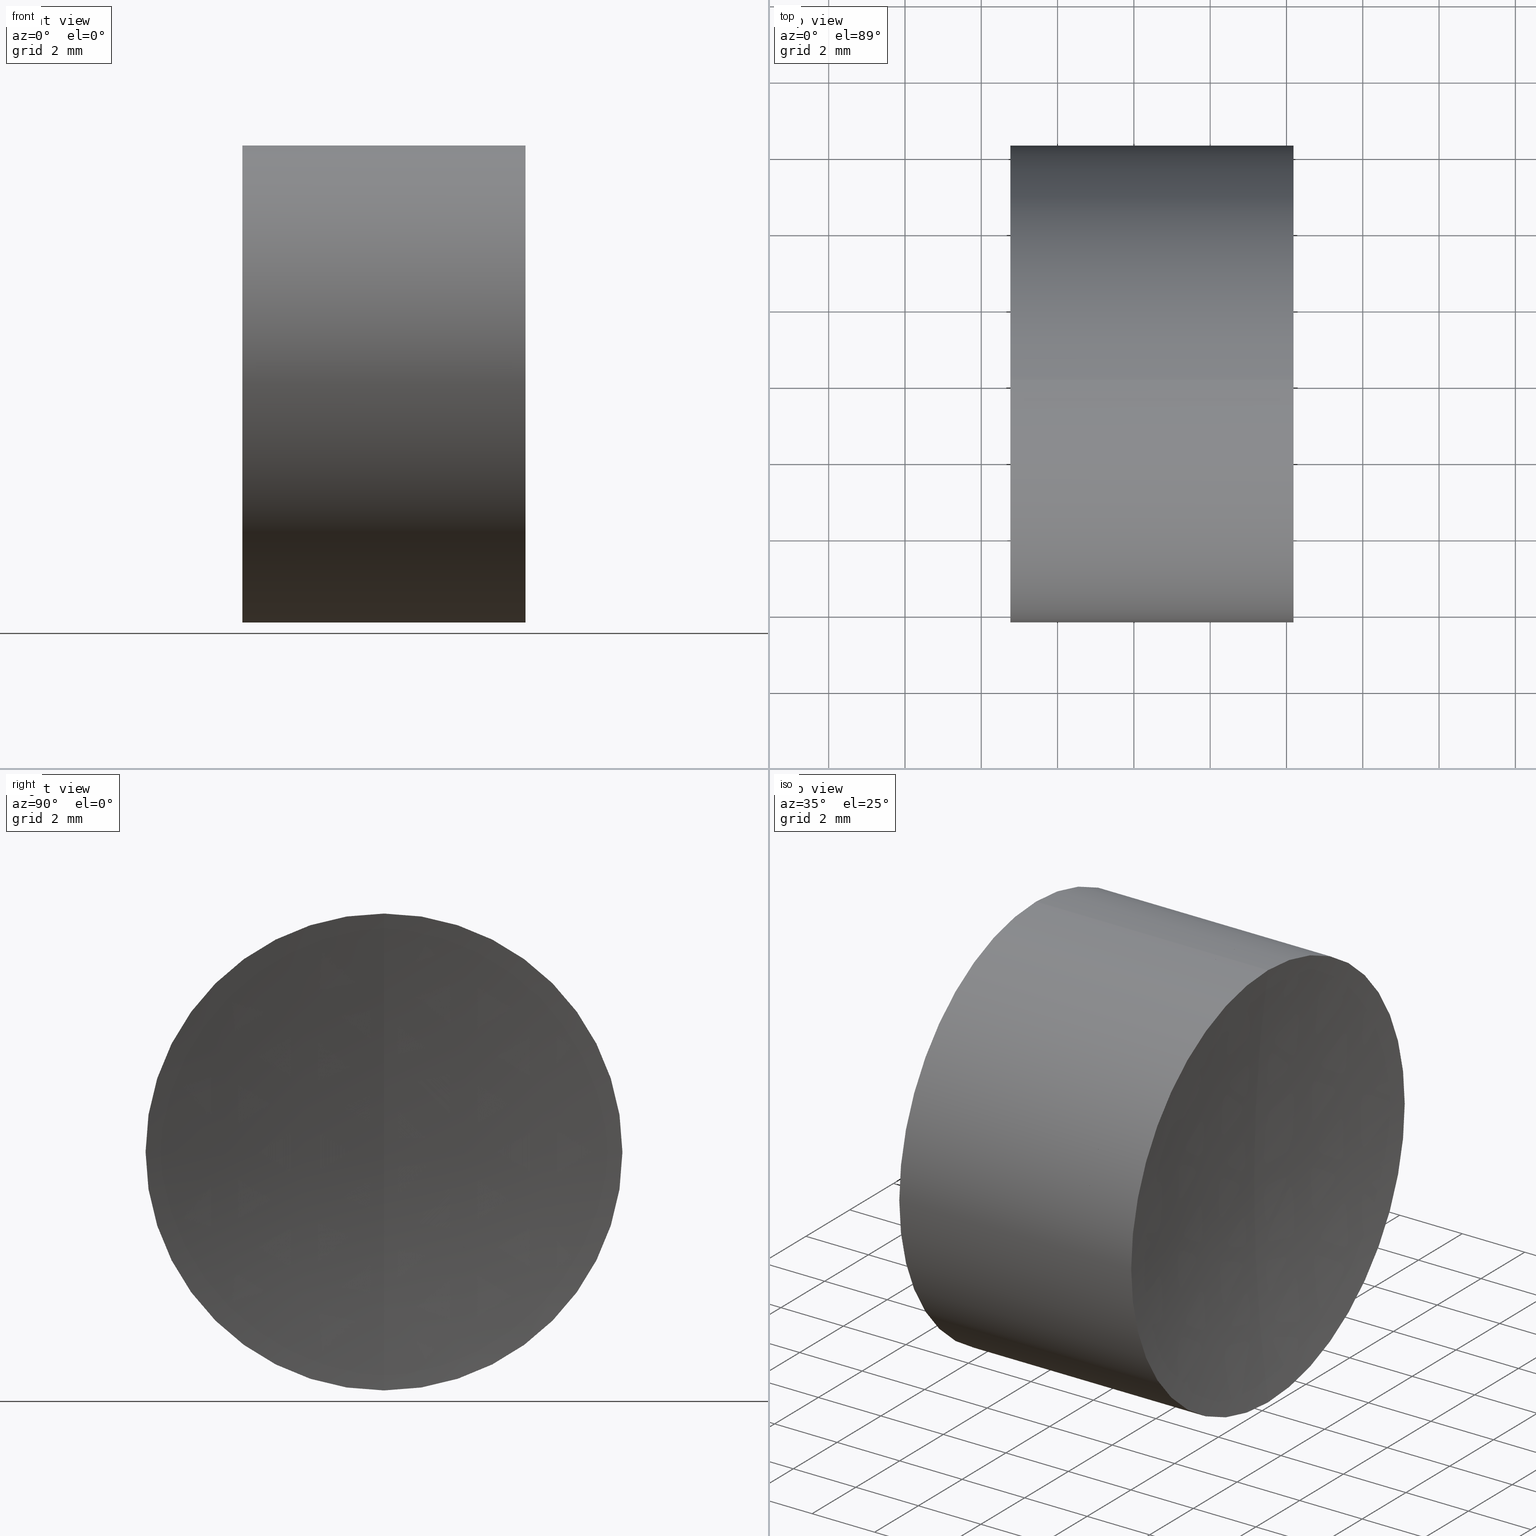
[diagram: canonical four-view strip — front | top / right | iso, engineering-drawing reading convention]
A machine part, canonical four-view strip (front | top / right | iso — engineering-drawing reading convention). The complete STEP part file that produces these views, byte-faithful:
ISO-10303-21;
HEADER;
FILE_DESCRIPTION (( 'STEP AP214' ),
    '1' );
FILE_NAME ('145187.STEP',
    '2019-06-13T03:06:39',
    ( 'user' ),
    ( '΢���й�' ),
    'SwSTEP 2.0',
    'SolidWorks 2016',
    '' );
FILE_SCHEMA (( 'AUTOMOTIVE_DESIGN' ));
ENDSEC;

DATA;
#1 = DIRECTION ( 'NONE',  ( 0.0000000000000000000, -1.000000000000000000, 0.0000000000000000000 ) ) ;
#2 = SPHERICAL_SURFACE ( 'NONE', #309, 13.08999999999999500 ) ;
#3 = VERTEX_POINT ( 'NONE', #164 ) ;
#4 = DIRECTION ( 'NONE',  ( 0.0000000000000000000, 0.0000000000000000000, 1.000000000000000000 ) ) ;
#5 = SURFACE_STYLE_USAGE ( .BOTH. , #320 ) ;
#6 = CARTESIAN_POINT ( 'NONE',  ( 230.6595650911643500, 0.0000000000000000000, 6.249999999999999100 ) ) ;
#7 = ORIENTED_EDGE ( 'NONE', *, *, #278, .F. ) ;
#8 = EDGE_CURVE ( 'NONE', #122, #172, #330, .T. ) ;
#9 = AXIS2_PLACEMENT_3D ( 'NONE', #305, #113, #325 ) ;
#10 = DIRECTION ( 'NONE',  ( -0.0000000000000000000, -1.000000000000000000, -0.0000000000000000000 ) ) ;
#11 = FACE_OUTER_BOUND ( 'NONE', #42, .T. ) ;
#12 = ORIENTED_EDGE ( 'NONE', *, *, #8, .F. ) ;
#13 = CARTESIAN_POINT ( 'NONE',  ( 242.1611128131016200, 0.0000000000000000000, -1.765486017027682300E-025 ) ) ;
#14 = ADVANCED_FACE ( 'NONE', ( #124 ), #260, .F. ) ;
#15 = SPHERICAL_SURFACE ( 'NONE', #239, 13.09000000000000900 ) ;
#16 = DIRECTION ( 'NONE',  ( -4.440892098500621400E-015, 0.0000000000000000000, 1.000000000000000000 ) ) ;
#17 = EDGE_CURVE ( 'NONE', #275, #229, #188, .T. ) ;
#18 = AXIS2_PLACEMENT_3D ( 'NONE', #167, #191, #217 ) ;
#19 = ORIENTED_EDGE ( 'NONE', *, *, #140, .F. ) ;
#20 = FILL_AREA_STYLE ('',( #272 ) ) ;
#21 = UNCERTAINTY_MEASURE_WITH_UNIT (LENGTH_MEASURE( 1.000000000000000100E-005 ), #293, 'distance_accuracy_value', 'NONE');
#22 = LINE ( 'NONE', #185, #302 ) ;
#23 = EDGE_LOOP ( 'NONE', ( #347, #145, #313, #224 ) ) ;
#24 = DIRECTION ( 'NONE',  ( 0.0000000000000000000, 0.0000000000000000000, 1.000000000000000000 ) ) ;
#25 = SURFACE_SIDE_STYLE ('',( #55 ) ) ;
#26 = STYLED_ITEM ( 'NONE', ( #251 ), #91 ) ;
#27 = DIRECTION ( 'NONE',  ( -3.771137991253931800E-015, 0.0000000000000000000, 1.000000000000000000 ) ) ;
#28 = COLOUR_RGB ( '',1.000000000000000000, 1.000000000000000000, 1.000000000000000000 ) ;
#29 = AXIS2_PLACEMENT_3D ( 'NONE', #241, #111, #218 ) ;
#30 = DIRECTION ( 'NONE',  ( -0.0000000000000000000, 1.000000000000000000, 0.0000000000000000000 ) ) ;
#31 = CIRCLE ( 'NONE', #250, 6.250000000000006200 ) ;
#32 = DIRECTION ( 'NONE',  ( -1.000000000000000000, -0.0000000000000000000, -4.069742797125215000E-015 ) ) ;
#33 = VERTEX_POINT ( 'NONE', #133 ) ;
#34 = EDGE_CURVE ( 'NONE', #3, #257, #115, .T. ) ;
#35 = CIRCLE ( 'NONE', #213, 13.08999999999999500 ) ;
#36 = ORIENTED_EDGE ( 'NONE', *, *, #8, .T. ) ;
#37 = SURFACE_STYLE_USAGE ( .BOTH. , #25 ) ;
#38 = CIRCLE ( 'NONE', #119, 6.250000000000041700 ) ;
#39 = APPLICATION_CONTEXT ( 'automotive_design' ) ;
#40 = CARTESIAN_POINT ( 'NONE',  ( 210.4711128131016300, 0.0000000000000000000, 0.0000000000000000000 ) ) ;
#41 = FACE_OUTER_BOUND ( 'NONE', #112, .T. ) ;
#42 = EDGE_LOOP ( 'NONE', ( #248, #90, #139, #192 ) ) ;
#43 = AXIS2_PLACEMENT_3D ( 'NONE', #236, #137, #27 ) ;
#44 = AXIS2_PLACEMENT_3D ( 'NONE', #49, #202, #297 ) ;
#45 = CARTESIAN_POINT ( 'NONE',  ( 230.6595650911644100, 7.654042494670974400E-016, -6.250000000000061300 ) ) ;
#46 = CARTESIAN_POINT ( 'NONE',  ( 230.6595650911643800, 0.0000000000000000000, -1.764147822935559100E-014 ) ) ;
#47 = VECTOR ( 'NONE', #299, 1000.000000000000000 ) ;
#48 = ADVANCED_FACE ( 'NONE', ( #50 ), #106, .T. ) ;
#49 = CARTESIAN_POINT ( 'NONE',  ( 224.7643804590949800, 0.0000000000000000000, -4.143845505352728400E-014 ) ) ;
#50 = FACE_OUTER_BOUND ( 'NONE', #168, .T. ) ;
#51 = CARTESIAN_POINT ( 'NONE',  ( 232.1856338611331400, 0.0000000000000000000, 6.250000000000000000 ) ) ;
#52 = FACE_OUTER_BOUND ( 'NONE', #56, .T. ) ;
#53 = AXIS2_PLACEMENT_3D ( 'NONE', #67, #118, #160 ) ;
#54 = ORIENTED_EDGE ( 'NONE', *, *, #17, .T. ) ;
#55 = SURFACE_STYLE_FILL_AREA ( #114 ) ;
#56 = EDGE_LOOP ( 'NONE', ( #19, #81, #85 ) ) ;
#57 = EDGE_CURVE ( 'NONE', #257, #253, #177, .T. ) ;
#58 = DIRECTION ( 'NONE',  ( -1.000000000000000000, -0.0000000000000000000, -4.069742797125215000E-015 ) ) ;
#59 = PRESENTATION_LAYER_ASSIGNMENT (  '', '', ( #65 ) ) ;
#60 = CARTESIAN_POINT ( 'NONE',  ( 232.1856338611331700, 0.0000000000000000000, -1.143077084485743200E-014 ) ) ;
#61 = CLOSED_SHELL ( 'NONE', ( #186, #48, #136, #291, #212, #242 ) ) ;
#62 = DIRECTION ( 'NONE',  ( -0.0000000000000000000, 1.000000000000000000, 0.0000000000000000000 ) ) ;
#63 = CARTESIAN_POINT ( 'NONE',  ( -0.8160621761658051200, 7.654042494671008900E-016, -6.250000000000041700 ) ) ;
#64 = DIRECTION ( 'NONE',  ( 0.0000000000000000000, 0.0000000000000000000, 1.000000000000000000 ) ) ;
#65 = STYLED_ITEM ( 'NONE', ( #285 ), #103 ) ;
#66 = EDGE_LOOP ( 'NONE', ( #215, #36, #116, #342 ) ) ;
#67 = CARTESIAN_POINT ( 'NONE',  ( 275.9011128131015800, 0.0000000000000000000, 0.0000000000000000000 ) ) ;
#68 = DIRECTION ( 'NONE',  ( 0.0000000000000000000, 0.0000000000000000000, 1.000000000000000000 ) ) ;
#69 = DIRECTION ( 'NONE',  ( -1.000000000000000000, -0.0000000000000000000, -4.069742797125215000E-015 ) ) ;
#70 = VERTEX_POINT ( 'NONE', #258 ) ;
#71 = FACE_OUTER_BOUND ( 'NONE', #130, .T. ) ;
#72 = CARTESIAN_POINT ( 'NONE',  ( 242.1611128131016200, 0.0000000000000000000, -1.765486017027682300E-025 ) ) ;
#73 = ORIENTED_EDGE ( 'NONE', *, *, #109, .T. ) ;
#74 = ADVANCED_FACE ( 'NONE', ( #41 ), #318, .T. ) ;
#75 = CARTESIAN_POINT ( 'NONE',  ( 231.7411128131016100, 0.0000000000000000000, -1.770158217885320100E-013 ) ) ;
#76 = DIRECTION ( 'NONE',  ( 0.0000000000000000000, 0.0000000000000000000, -1.000000000000000000 ) ) ;
#77 = EDGE_CURVE ( 'NONE', #275, #233, #31, .T. ) ;
#78 = DIRECTION ( 'NONE',  ( -1.000000000000000000, -0.0000000000000000000, 1.836970198721029700E-016 ) ) ;
#79 = AXIS2_PLACEMENT_3D ( 'NONE', #235, #126, #132 ) ;
#80 = COLOUR_RGB ( '',1.000000000000000000, 1.000000000000000000, 1.000000000000000000 ) ;
#81 = ORIENTED_EDGE ( 'NONE', *, *, #128, .T. ) ;
#82 = CARTESIAN_POINT ( 'NONE',  ( 210.4711128131016300, 0.0000000000000000000, 0.0000000000000000000 ) ) ;
#83 =( NAMED_UNIT ( * ) PLANE_ANGLE_UNIT ( ) SI_UNIT ( $, .RADIAN. ) );
#84 = VECTOR ( 'NONE', #78, 1000.000000000000000 ) ;
#85 = ORIENTED_EDGE ( 'NONE', *, *, #317, .T. ) ;
#86 = MECHANICAL_DESIGN_GEOMETRIC_PRESENTATION_REPRESENTATION (  '', ( #26 ), #245 ) ;
#87 = STYLED_ITEM ( 'NONE', ( #208 ), #281 ) ;
#88 = SHAPE_DEFINITION_REPRESENTATION ( #135, #281 ) ;
#89 = DIRECTION ( 'NONE',  ( -2.249639673992786400E-032, -1.000000000000000000, -1.224646799147353200E-016 ) ) ;
#90 = ORIENTED_EDGE ( 'NONE', *, *, #34, .T. ) ;
#91 = MANIFOLD_SOLID_BREP ( '��ת3', #345 ) ;
#92 = AXIS2_PLACEMENT_3D ( 'NONE', #162, #138, #295 ) ;
#93 = MECHANICAL_DESIGN_GEOMETRIC_PRESENTATION_REPRESENTATION (  '', ( #65 ), #141 ) ;
#94 = FACE_OUTER_BOUND ( 'NONE', #292, .T. ) ;
#95 = ORIENTED_EDGE ( 'NONE', *, *, #216, .F. ) ;
#96 =( NAMED_UNIT ( * ) SI_UNIT ( $, .STERADIAN. ) SOLID_ANGLE_UNIT ( ) );
#97 = DIRECTION ( 'NONE',  ( 0.0000000000000000000, -1.224646799147353200E-016, 1.000000000000000000 ) ) ;
#98 = ORIENTED_EDGE ( 'NONE', *, *, #117, .T. ) ;
#99 = DIRECTION ( 'NONE',  ( -1.000000000000000000, -0.0000000000000000000, 1.836970198721029700E-016 ) ) ;
#100 = CARTESIAN_POINT ( 'NONE',  ( 230.6595650911643500, 0.0000000000000000000, 6.249999999999996400 ) ) ;
#101 = FACE_OUTER_BOUND ( 'NONE', #282, .T. ) ;
#102 = DIRECTION ( 'NONE',  ( 0.0000000000000000000, 1.000000000000000000, -0.0000000000000000000 ) ) ;
#103 = MANIFOLD_SOLID_BREP ( '��ת1', #61 ) ;
#104 = AXIS2_PLACEMENT_3D ( 'NONE', #201, #62, #68 ) ;
#105 = ADVANCED_FACE ( 'NONE', ( #129 ), #121, .T. ) ;
#106 = CYLINDRICAL_SURFACE ( 'NONE', #92, 6.250000000000041700 ) ;
#107 = ORIENTED_EDGE ( 'NONE', *, *, #148, .T. ) ;
#108 = SURFACE_STYLE_USAGE ( .BOTH. , #343 ) ;
#109 = EDGE_CURVE ( 'NONE', #70, #33, #190, .T. ) ;
#110 = CIRCLE ( 'NONE', #328, 6.250000000000006200 ) ;
#111 = DIRECTION ( 'NONE',  ( 0.0000000000000000000, 0.0000000000000000000, 1.000000000000000000 ) ) ;
#112 = EDGE_LOOP ( 'NONE', ( #210, #54, #161 ) ) ;
#113 = DIRECTION ( 'NONE',  ( -4.983997489852390500E-031, 1.000000000000000000, 1.224646799147353200E-016 ) ) ;
#114 = FILL_AREA_STYLE ('',( #226 ) ) ;
#115 = CIRCLE ( 'NONE', #338, 6.250000000000041700 ) ;
#116 = ORIENTED_EDGE ( 'NONE', *, *, #175, .T. ) ;
#117 = EDGE_CURVE ( 'NONE', #3, #33, #265, .T. ) ;
#118 = DIRECTION ( 'NONE',  ( 0.0000000000000000000, 1.000000000000000000, -0.0000000000000000000 ) ) ;
#119 = AXIS2_PLACEMENT_3D ( 'NONE', #336, #120, #24 ) ;
#120 = DIRECTION ( 'NONE',  ( -1.000000000000000000, -0.0000000000000000000, 1.836970198721029700E-016 ) ) ;
#121 = CYLINDRICAL_SURFACE ( 'NONE', #79, 6.250000000000008900 ) ;
#122 = VERTEX_POINT ( 'NONE', #261 ) ;
#123 = CIRCLE ( 'NONE', #9, 44.15999999999996100 ) ;
#124 = FACE_OUTER_BOUND ( 'NONE', #269, .T. ) ;
#125 =( GEOMETRIC_REPRESENTATION_CONTEXT ( 3 ) GLOBAL_UNCERTAINTY_ASSIGNED_CONTEXT ( ( #326 ) ) GLOBAL_UNIT_ASSIGNED_CONTEXT ( ( #276, #83, #277 ) ) REPRESENTATION_CONTEXT ( 'NONE', 'WORKASPACE' ) );
#126 = DIRECTION ( 'NONE',  ( -1.000000000000000000, -0.0000000000000000000, -4.069742797125215000E-015 ) ) ;
#127 = CARTESIAN_POINT ( 'NONE',  ( 224.7643804590949800, 0.0000000000000000000, -4.143845505352728400E-014 ) ) ;
#128 = EDGE_CURVE ( 'NONE', #244, #33, #331, .T. ) ;
#129 = FACE_OUTER_BOUND ( 'NONE', #66, .T. ) ;
#130 = EDGE_LOOP ( 'NONE', ( #134, #166, #107 ) ) ;
#131 = DIRECTION ( 'NONE',  ( -0.0000000000000000000, 1.000000000000000000, 0.0000000000000000000 ) ) ;
#132 = DIRECTION ( 'NONE',  ( -4.440892098500619900E-015, 0.0000000000000000000, 1.000000000000000000 ) ) ;
#133 = CARTESIAN_POINT ( 'NONE',  ( 224.7643804590949800, 7.654042494671005900E-016, -6.250000000000042600 ) ) ;
#134 = ORIENTED_EDGE ( 'NONE', *, *, #17, .F. ) ;
#135 = PRODUCT_DEFINITION_SHAPE ( 'NONE', 'NONE',  #279 ) ;
#136 = ADVANCED_FACE ( 'NONE', ( #52 ), #256, .F. ) ;
#137 = DIRECTION ( 'NONE',  ( 0.0000000000000000000, 1.000000000000000000, -0.0000000000000000000 ) ) ;
#138 = DIRECTION ( 'NONE',  ( -1.000000000000000000, -0.0000000000000000000, 1.836970198721029700E-016 ) ) ;
#139 = ORIENTED_EDGE ( 'NONE', *, *, #223, .T. ) ;
#140 = EDGE_CURVE ( 'NONE', #244, #70, #182, .T. ) ;
#141 =( GEOMETRIC_REPRESENTATION_CONTEXT ( 3 ) GLOBAL_UNCERTAINTY_ASSIGNED_CONTEXT ( ( #323 ) ) GLOBAL_UNIT_ASSIGNED_CONTEXT ( ( #231, #180, #209 ) ) REPRESENTATION_CONTEXT ( 'NONE', 'WORKASPACE' ) );
#142 = DIRECTION ( 'NONE',  ( 0.0000000000000000000, 1.224646799147353000E-016, -1.000000000000000000 ) ) ;
#143 = PRODUCT_DEFINITION_CONTEXT ( 'detailed design', #39, 'design' ) ;
#144 = APPLICATION_PROTOCOL_DEFINITION ( 'draft international standard', 'automotive_design', 1998, #147 ) ;
#145 = ORIENTED_EDGE ( 'NONE', *, *, #298, .T. ) ;
#146 = DIRECTION ( 'NONE',  ( -1.000000000000000000, -0.0000000000000000000, -4.069742797125215000E-015 ) ) ;
#147 = APPLICATION_CONTEXT ( 'automotive_design' ) ;
#148 = EDGE_CURVE ( 'NONE', #233, #229, #322, .T. ) ;
#149 = DIRECTION ( 'NONE',  ( -4.240729658614040700E-015, 0.0000000000000000000, 1.000000000000000000 ) ) ;
#150 = ORIENTED_EDGE ( 'NONE', *, *, #200, .T. ) ;
#151 = CARTESIAN_POINT ( 'NONE',  ( 242.1611128131016200, 0.0000000000000000000, -1.765486017027682300E-025 ) ) ;
#152 = CARTESIAN_POINT ( 'NONE',  ( 226.0711128131016200, 0.0000000000000000000, -1.910449006669870900E-015 ) ) ;
#153 = CYLINDRICAL_SURFACE ( 'NONE', #252, 6.250000000000041700 ) ;
#154 = ORIENTED_EDGE ( 'NONE', *, *, #223, .F. ) ;
#155 =( NAMED_UNIT ( * ) SI_UNIT ( $, .STERADIAN. ) SOLID_ANGLE_UNIT ( ) );
#156 = EDGE_CURVE ( 'NONE', #233, #275, #110, .T. ) ;
#157 = ADVANCED_FACE ( 'NONE', ( #311 ), #247, .F. ) ;
#158 = AXIS2_PLACEMENT_3D ( 'NONE', #127, #99, #286 ) ;
#159 = DIRECTION ( 'NONE',  ( -4.440892098500618300E-015, 0.0000000000000000000, 1.000000000000000000 ) ) ;
#160 = DIRECTION ( 'NONE',  ( -3.771137991253931800E-015, 0.0000000000000000000, 1.000000000000000000 ) ) ;
#161 = ORIENTED_EDGE ( 'NONE', *, *, #148, .F. ) ;
#162 = CARTESIAN_POINT ( 'NONE',  ( -0.8160621761658039000, 0.0000000000000000000, 0.0000000000000000000 ) ) ;
#163 = PRODUCT_RELATED_PRODUCT_CATEGORY ( 'part', '', ( #341 ) ) ;
#164 = CARTESIAN_POINT ( 'NONE',  ( 230.6595650911643500, 7.654042494671010900E-016, -6.250000000000085300 ) ) ;
#165 = FACE_OUTER_BOUND ( 'NONE', #23, .T. ) ;
#166 = ORIENTED_EDGE ( 'NONE', *, *, #77, .T. ) ;
#167 = CARTESIAN_POINT ( 'NONE',  ( 242.1611128131016200, 0.0000000000000000000, -1.765486017027682300E-025 ) ) ;
#168 = EDGE_LOOP ( 'NONE', ( #332, #98, #196, #154 ) ) ;
#169 = FACE_OUTER_BOUND ( 'NONE', #307, .T. ) ;
#170 = DIRECTION ( 'NONE',  ( -1.000000000000000000, -0.0000000000000000000, -4.069742797125215000E-015 ) ) ;
#171 = CIRCLE ( 'NONE', #225, 44.15999999999996100 ) ;
#172 = VERTEX_POINT ( 'NONE', #51 ) ;
#173 = VECTOR ( 'NONE', #262, 1000.000000000000000 ) ;
#174 = DIRECTION ( 'NONE',  ( -4.983997489852390500E-031, 1.000000000000000000, 1.224646799147353200E-016 ) ) ;
#175 = EDGE_CURVE ( 'NONE', #172, #233, #22, .T. ) ;
#176 = CARTESIAN_POINT ( 'NONE',  ( 230.6595650911643500, 0.0000000000000000000, -4.252138290203425000E-014 ) ) ;
#177 = CIRCLE ( 'NONE', #327, 13.08999999999999500 ) ;
#178 = ORIENTED_EDGE ( 'NONE', *, *, #200, .F. ) ;
#179 = CARTESIAN_POINT ( 'NONE',  ( 229.0711128131016200, 0.0000000000000000000, 1.603062659907335600E-015 ) ) ;
#180 =( NAMED_UNIT ( * ) PLANE_ANGLE_UNIT ( ) SI_UNIT ( $, .RADIAN. ) );
#181 = DIRECTION ( 'NONE',  ( 0.0000000000000000000, 1.000000000000000000, -0.0000000000000000000 ) ) ;
#182 = CIRCLE ( 'NONE', #197, 15.60000000000000100 ) ;
#183 = DIRECTION ( 'NONE',  ( -1.000000000000000000, -0.0000000000000000000, -4.069742797125215000E-015 ) ) ;
#184 = CARTESIAN_POINT ( 'NONE',  ( -0.8160621761658039000, 0.0000000000000000000, 0.0000000000000000000 ) ) ;
#185 = CARTESIAN_POINT ( 'NONE',  ( 224.7643804590949500, 0.0000000000000000000, 6.249999999999967100 ) ) ;
#186 = ADVANCED_FACE ( 'NONE', ( #101 ), #237, .F. ) ;
#187 = CARTESIAN_POINT ( 'NONE',  ( 242.1611128131016200, 0.0000000000000000000, -1.765486017027682300E-025 ) ) ;
#188 = CIRCLE ( 'NONE', #230, 13.09000000000000900 ) ;
#189 = CARTESIAN_POINT ( 'NONE',  ( 242.1611128131016200, 0.0000000000000000000, -1.765486017027682300E-025 ) ) ;
#190 = CIRCLE ( 'NONE', #158, 6.250000000000040900 ) ;
#191 = DIRECTION ( 'NONE',  ( 0.0000000000000000000, -1.000000000000000000, 0.0000000000000000000 ) ) ;
#192 = ORIENTED_EDGE ( 'NONE', *, *, #317, .F. ) ;
#193 = PRODUCT_CONTEXT ( 'NONE', #147, 'mechanical' ) ;
#194 = DIRECTION ( 'NONE',  ( -4.440892098500618300E-015, 0.0000000000000000000, 1.000000000000000000 ) ) ;
#195 = EDGE_CURVE ( 'NONE', #3, #253, #35, .T. ) ;
#196 = ORIENTED_EDGE ( 'NONE', *, *, #109, .F. ) ;
#197 = AXIS2_PLACEMENT_3D ( 'NONE', #268, #288, #263 ) ;
#198 = DIRECTION ( 'NONE',  ( -4.440892098500621400E-015, 0.0000000000000000000, 1.000000000000000000 ) ) ;
#199 = ORIENTED_EDGE ( 'NONE', *, *, #57, .T. ) ;
#200 = EDGE_CURVE ( 'NONE', #172, #203, #171, .T. ) ;
#201 = CARTESIAN_POINT ( 'NONE',  ( 210.4711128131016300, 0.0000000000000000000, 0.0000000000000000000 ) ) ;
#202 = DIRECTION ( 'NONE',  ( -1.000000000000000000, -0.0000000000000000000, 1.836970198721029700E-016 ) ) ;
#203 = VERTEX_POINT ( 'NONE', #75 ) ;
#204 = APPLICATION_PROTOCOL_DEFINITION ( 'draft international standard', 'automotive_design', 1998, #39 ) ;
#205 = DIRECTION ( 'NONE',  ( -4.440892098500619900E-015, 0.0000000000000000000, 1.000000000000000000 ) ) ;
#206 = CARTESIAN_POINT ( 'NONE',  ( 224.7643804590949800, 0.0000000000000000000, -4.163336342344337000E-014 ) ) ;
#207 = PRODUCT_DEFINITION_FORMATION_WITH_SPECIFIED_SOURCE ( '�κ�', '', #341, .NOT_KNOWN. ) ;
#208 = PRESENTATION_STYLE_ASSIGNMENT (( #37 ) ) ;
#209 =( NAMED_UNIT ( * ) SI_UNIT ( $, .STERADIAN. ) SOLID_ANGLE_UNIT ( ) );
#210 = ORIENTED_EDGE ( 'NONE', *, *, #156, .T. ) ;
#211 = DIRECTION ( 'NONE',  ( 0.0000000000000000000, 0.0000000000000000000, -1.000000000000000000 ) ) ;
#212 = ADVANCED_FACE ( 'NONE', ( #11 ), #153, .T. ) ;
#213 = AXIS2_PLACEMENT_3D ( 'NONE', #189, #131, #312 ) ;
#214 = CARTESIAN_POINT ( 'NONE',  ( 242.1611128131016200, 0.0000000000000000000, -1.765486017027682300E-025 ) ) ;
#215 = ORIENTED_EDGE ( 'NONE', *, *, #298, .F. ) ;
#216 = EDGE_CURVE ( 'NONE', #172, #122, #228, .T. ) ;
#217 = DIRECTION ( 'NONE',  ( 0.0000000000000000000, 0.0000000000000000000, -1.000000000000000000 ) ) ;
#218 = DIRECTION ( 'NONE',  ( 1.000000000000000000, 0.0000000000000000000, 0.0000000000000000000 ) ) ;
#219 = EDGE_LOOP ( 'NONE', ( #12, #303, #178 ) ) ;
#220 = AXIS2_PLACEMENT_3D ( 'NONE', #40, #30, #64 ) ;
#221 =( LENGTH_UNIT ( ) NAMED_UNIT ( * ) SI_UNIT ( .MILLI., .METRE. ) );
#222 = SPHERICAL_SURFACE ( 'NONE', #220, 15.60000000000000100 ) ;
#223 = EDGE_CURVE ( 'NONE', #257, #70, #294, .T. ) ;
#224 = ORIENTED_EDGE ( 'NONE', *, *, #175, .F. ) ;
#225 = AXIS2_PLACEMENT_3D ( 'NONE', #255, #1, #280 ) ;
#226 = FILL_AREA_STYLE_COLOUR ( '', #28 ) ;
#227 = DIRECTION ( 'NONE',  ( -4.240729658614040700E-015, 0.0000000000000000000, 1.000000000000000000 ) ) ;
#228 = CIRCLE ( 'NONE', #232, 6.250000000000011500 ) ;
#229 = VERTEX_POINT ( 'NONE', #344 ) ;
#230 = AXIS2_PLACEMENT_3D ( 'NONE', #72, #174, #333 ) ;
#231 =( LENGTH_UNIT ( ) NAMED_UNIT ( * ) SI_UNIT ( .MILLI., .METRE. ) );
#232 = AXIS2_PLACEMENT_3D ( 'NONE', #234, #69, #194 ) ;
#233 = VERTEX_POINT ( 'NONE', #100 ) ;
#234 = CARTESIAN_POINT ( 'NONE',  ( 232.1856338611331700, 0.0000000000000000000, -1.143077084485743200E-014 ) ) ;
#235 = CARTESIAN_POINT ( 'NONE',  ( 224.7643804590949800, 0.0000000000000000000, -4.163336342344337000E-014 ) ) ;
#236 = CARTESIAN_POINT ( 'NONE',  ( 275.9011128131015800, 0.0000000000000000000, 0.0000000000000000000 ) ) ;
#237 = SPHERICAL_SURFACE ( 'NONE', #337, 13.08999999999999500 ) ;
#238 = PRESENTATION_LAYER_ASSIGNMENT (  '', '', ( #26 ) ) ;
#239 = AXIS2_PLACEMENT_3D ( 'NONE', #151, #181, #149 ) ;
#240 = FILL_AREA_STYLE ('',( #314 ) ) ;
#241 = CARTESIAN_POINT ( 'NONE',  ( 0.0000000000000000000, 0.0000000000000000000, 0.0000000000000000000 ) ) ;
#242 = ADVANCED_FACE ( 'NONE', ( #94 ), #2, .F. ) ;
#243 = COLOUR_RGB ( '',1.000000000000000000, 1.000000000000000000, 1.000000000000000000 ) ;
#244 = VERTEX_POINT ( 'NONE', #152 ) ;
#245 =( GEOMETRIC_REPRESENTATION_CONTEXT ( 3 ) GLOBAL_UNCERTAINTY_ASSIGNED_CONTEXT ( ( #21 ) ) GLOBAL_UNIT_ASSIGNED_CONTEXT ( ( #293, #316, #155 ) ) REPRESENTATION_CONTEXT ( 'NONE', 'WORKASPACE' ) );
#246 = AXIS2_PLACEMENT_3D ( 'NONE', #206, #58, #205 ) ;
#247 = SPHERICAL_SURFACE ( 'NONE', #53, 44.15999999999996100 ) ;
#248 = ORIENTED_EDGE ( 'NONE', *, *, #117, .F. ) ;
#249 =( NAMED_UNIT ( * ) PLANE_ANGLE_UNIT ( ) SI_UNIT ( $, .RADIAN. ) );
#250 = AXIS2_PLACEMENT_3D ( 'NONE', #283, #170, #16 ) ;
#251 = PRESENTATION_STYLE_ASSIGNMENT (( #108 ) ) ;
#252 = AXIS2_PLACEMENT_3D ( 'NONE', #184, #271, #267 ) ;
#253 = VERTEX_POINT ( 'NONE', #179 ) ;
#254 = UNCERTAINTY_MEASURE_WITH_UNIT (LENGTH_MEASURE( 1.000000000000000100E-005 ), #221, 'distance_accuracy_value', 'NONE');
#255 = CARTESIAN_POINT ( 'NONE',  ( 275.9011128131015800, 0.0000000000000000000, 0.0000000000000000000 ) ) ;
#256 = SPHERICAL_SURFACE ( 'NONE', #104, 15.60000000000000100 ) ;
#257 = VERTEX_POINT ( 'NONE', #6 ) ;
#258 = CARTESIAN_POINT ( 'NONE',  ( 224.7643804590949800, 0.0000000000000000000, 6.249999999999998200 ) ) ;
#259 = CARTESIAN_POINT ( 'NONE',  ( 224.7643804590950100, 7.654042494670968500E-016, -6.250000000000050600 ) ) ;
#260 = SPHERICAL_SURFACE ( 'NONE', #43, 44.15999999999996100 ) ;
#261 = CARTESIAN_POINT ( 'NONE',  ( 232.1856338611332000, 7.654042494670970400E-016, -6.250000000000023100 ) ) ;
#262 = DIRECTION ( 'NONE',  ( -1.000000000000000000, -0.0000000000000000000, -4.069742797125215000E-015 ) ) ;
#263 = DIRECTION ( 'NONE',  ( 0.0000000000000000000, 0.0000000000000000000, -1.000000000000000000 ) ) ;
#264 = DIRECTION ( 'NONE',  ( -1.000000000000000000, -0.0000000000000000000, 1.836970198721029700E-016 ) ) ;
#265 = LINE ( 'NONE', #63, #47 ) ;
#266 = CARTESIAN_POINT ( 'NONE',  ( 242.1611128131016200, 0.0000000000000000000, -1.765486017027682300E-025 ) ) ;
#267 = DIRECTION ( 'NONE',  ( 1.908195823574475000E-016, 0.0000000000000000000, 1.000000000000000000 ) ) ;
#268 = CARTESIAN_POINT ( 'NONE',  ( 210.4711128131016300, 0.0000000000000000000, 0.0000000000000000000 ) ) ;
#269 = EDGE_LOOP ( 'NONE', ( #290, #95, #150 ) ) ;
#270 = ADVANCED_FACE ( 'NONE', ( #165 ), #273, .T. ) ;
#271 = DIRECTION ( 'NONE',  ( -1.000000000000000000, -0.0000000000000000000, 1.836970198721029700E-016 ) ) ;
#272 = FILL_AREA_STYLE_COLOUR ( '', #80 ) ;
#273 = CYLINDRICAL_SURFACE ( 'NONE', #246, 6.250000000000008900 ) ;
#274 = AXIS2_PLACEMENT_3D ( 'NONE', #82, #329, #97 ) ;
#275 = VERTEX_POINT ( 'NONE', #45 ) ;
#276 =( LENGTH_UNIT ( ) NAMED_UNIT ( * ) SI_UNIT ( .MILLI., .METRE. ) );
#277 =( NAMED_UNIT ( * ) SI_UNIT ( $, .STERADIAN. ) SOLID_ANGLE_UNIT ( ) );
#278 = EDGE_CURVE ( 'NONE', #257, #3, #38, .T. ) ;
#279 = PRODUCT_DEFINITION ( 'δ֪', '', #207, #143 ) ;
#280 = DIRECTION ( 'NONE',  ( 0.0000000000000000000, 0.0000000000000000000, -1.000000000000000000 ) ) ;
#281 = ADVANCED_BREP_SHAPE_REPRESENTATION ( '145187', ( #103, #91, #29 ), #125 ) ;
#282 = EDGE_LOOP ( 'NONE', ( #7, #199, #339 ) ) ;
#283 = CARTESIAN_POINT ( 'NONE',  ( 230.6595650911643800, 0.0000000000000000000, -1.764147822935559100E-014 ) ) ;
#284 =( GEOMETRIC_REPRESENTATION_CONTEXT ( 3 ) GLOBAL_UNCERTAINTY_ASSIGNED_CONTEXT ( ( #254 ) ) GLOBAL_UNIT_ASSIGNED_CONTEXT ( ( #221, #249, #96 ) ) REPRESENTATION_CONTEXT ( 'NONE', 'WORKASPACE' ) );
#285 = PRESENTATION_STYLE_ASSIGNMENT (( #5 ) ) ;
#286 = DIRECTION ( 'NONE',  ( 0.0000000000000000000, 0.0000000000000000000, 1.000000000000000000 ) ) ;
#287 = ORIENTED_EDGE ( 'NONE', *, *, #140, .T. ) ;
#288 = DIRECTION ( 'NONE',  ( 0.0000000000000000000, -1.000000000000000000, 0.0000000000000000000 ) ) ;
#289 = EDGE_CURVE ( 'NONE', #122, #203, #123, .T. ) ;
#290 = ORIENTED_EDGE ( 'NONE', *, *, #289, .F. ) ;
#291 = ADVANCED_FACE ( 'NONE', ( #169 ), #222, .F. ) ;
#292 = EDGE_LOOP ( 'NONE', ( #301, #334, #296 ) ) ;
#293 =( LENGTH_UNIT ( ) NAMED_UNIT ( * ) SI_UNIT ( .MILLI., .METRE. ) );
#294 = LINE ( 'NONE', #324, #84 ) ;
#295 = DIRECTION ( 'NONE',  ( 1.908195823574475000E-016, 0.0000000000000000000, 1.000000000000000000 ) ) ;
#296 = ORIENTED_EDGE ( 'NONE', *, *, #195, .T. ) ;
#297 = DIRECTION ( 'NONE',  ( 0.0000000000000000000, 0.0000000000000000000, 1.000000000000000000 ) ) ;
#298 = EDGE_CURVE ( 'NONE', #122, #275, #321, .T. ) ;
#299 = DIRECTION ( 'NONE',  ( -1.000000000000000000, -0.0000000000000000000, 1.836970198721029700E-016 ) ) ;
#300 = MECHANICAL_DESIGN_GEOMETRIC_PRESENTATION_REPRESENTATION (  '', ( #87 ), #284 ) ;
#301 = ORIENTED_EDGE ( 'NONE', *, *, #57, .F. ) ;
#302 = VECTOR ( 'NONE', #183, 1000.000000000000000 ) ;
#303 = ORIENTED_EDGE ( 'NONE', *, *, #289, .T. ) ;
#304 = PRESENTATION_LAYER_ASSIGNMENT (  '', '', ( #87 ) ) ;
#305 = CARTESIAN_POINT ( 'NONE',  ( 275.9011128131015800, 0.0000000000000000000, 0.0000000000000000000 ) ) ;
#306 = SURFACE_STYLE_FILL_AREA ( #240 ) ;
#307 = EDGE_LOOP ( 'NONE', ( #319, #287, #73 ) ) ;
#308 = AXIS2_PLACEMENT_3D ( 'NONE', #187, #102, #227 ) ;
#309 = AXIS2_PLACEMENT_3D ( 'NONE', #13, #310, #211 ) ;
#310 = DIRECTION ( 'NONE',  ( -0.0000000000000000000, -1.000000000000000000, -0.0000000000000000000 ) ) ;
#311 = FACE_OUTER_BOUND ( 'NONE', #219, .T. ) ;
#312 = DIRECTION ( 'NONE',  ( 0.0000000000000000000, 0.0000000000000000000, 1.000000000000000000 ) ) ;
#313 = ORIENTED_EDGE ( 'NONE', *, *, #156, .F. ) ;
#314 = FILL_AREA_STYLE_COLOUR ( '', #243 ) ;
#315 = CIRCLE ( 'NONE', #44, 6.250000000000040900 ) ;
#316 =( NAMED_UNIT ( * ) PLANE_ANGLE_UNIT ( ) SI_UNIT ( $, .RADIAN. ) );
#317 = EDGE_CURVE ( 'NONE', #33, #70, #315, .T. ) ;
#318 = SPHERICAL_SURFACE ( 'NONE', #308, 13.09000000000000900 ) ;
#319 = ORIENTED_EDGE ( 'NONE', *, *, #128, .F. ) ;
#320 = SURFACE_SIDE_STYLE ('',( #346 ) ) ;
#321 = LINE ( 'NONE', #259, #173 ) ;
#322 = CIRCLE ( 'NONE', #18, 13.09000000000000900 ) ;
#323 = UNCERTAINTY_MEASURE_WITH_UNIT (LENGTH_MEASURE( 1.000000000000000100E-005 ), #231, 'distance_accuracy_value', 'NONE');
#324 = CARTESIAN_POINT ( 'NONE',  ( -0.8160621761658027900, 0.0000000000000000000, 6.250000000000041700 ) ) ;
#325 = DIRECTION ( 'NONE',  ( 0.0000000000000000000, -1.224646799147353500E-016, 1.000000000000000000 ) ) ;
#326 = UNCERTAINTY_MEASURE_WITH_UNIT (LENGTH_MEASURE( 1.000000000000000100E-005 ), #276, 'distance_accuracy_value', 'NONE');
#327 = AXIS2_PLACEMENT_3D ( 'NONE', #266, #89, #142 ) ;
#328 = AXIS2_PLACEMENT_3D ( 'NONE', #46, #32, #198 ) ;
#329 = DIRECTION ( 'NONE',  ( 2.249639673992786400E-032, 1.000000000000000000, 1.224646799147353200E-016 ) ) ;
#330 = CIRCLE ( 'NONE', #335, 6.250000000000011500 ) ;
#331 = CIRCLE ( 'NONE', #274, 15.60000000000000100 ) ;
#332 = ORIENTED_EDGE ( 'NONE', *, *, #278, .T. ) ;
#333 = DIRECTION ( 'NONE',  ( 0.0000000000000000000, -1.224646799147353200E-016, 1.000000000000000000 ) ) ;
#334 = ORIENTED_EDGE ( 'NONE', *, *, #34, .F. ) ;
#335 = AXIS2_PLACEMENT_3D ( 'NONE', #60, #146, #159 ) ;
#336 = CARTESIAN_POINT ( 'NONE',  ( 230.6595650911643500, 0.0000000000000000000, -4.252138290203425000E-014 ) ) ;
#337 = AXIS2_PLACEMENT_3D ( 'NONE', #214, #10, #76 ) ;
#338 = AXIS2_PLACEMENT_3D ( 'NONE', #176, #264, #4 ) ;
#339 = ORIENTED_EDGE ( 'NONE', *, *, #195, .F. ) ;
#340 = ADVANCED_FACE ( 'NONE', ( #71 ), #15, .T. ) ;
#341 = PRODUCT ( '145187', '145187', '', ( #193 ) ) ;
#342 = ORIENTED_EDGE ( 'NONE', *, *, #77, .F. ) ;
#343 = SURFACE_SIDE_STYLE ('',( #306 ) ) ;
#344 = CARTESIAN_POINT ( 'NONE',  ( 229.0711128131016200, 0.0000000000000000000, -5.247140188450370400E-014 ) ) ;
#345 = CLOSED_SHELL ( 'NONE', ( #157, #270, #74, #340, #105, #14 ) ) ;
#346 = SURFACE_STYLE_FILL_AREA ( #20 ) ;
#347 = ORIENTED_EDGE ( 'NONE', *, *, #216, .T. ) ;
ENDSEC;
END-ISO-10303-21;
